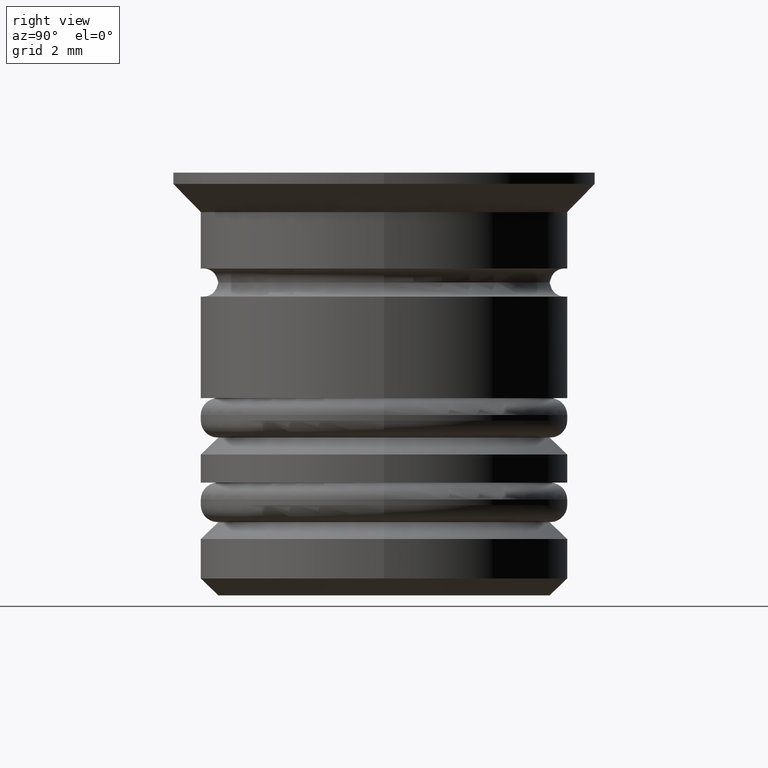
[diagram: clean part render]
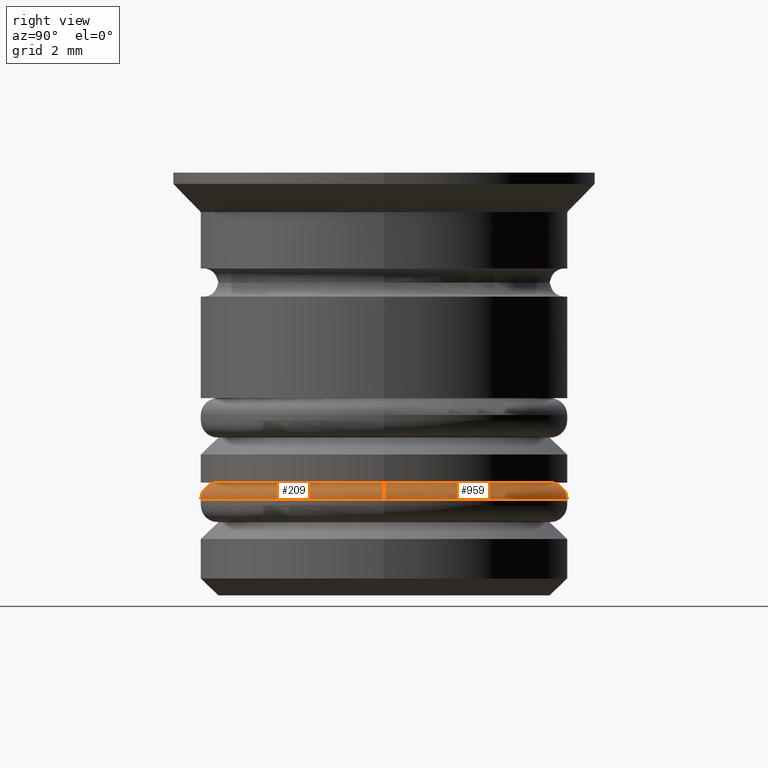
[diagram: same view with one multi-face feature highlighted, each face labeled with its STEP entity id]
A machine part, right view. The highlighted faces form ONE feature: a constant-radius fillet chain: 2 tangent blend faces with common blend radius 0.3 mm. The faces share edges in the B-rep.
Their STEP definitions:
[1] entity #959 (Torus):
#73 = CARTESIAN_POINT ( 'NONE',  ( 0.000000000000000000, 0.000000000000000000, -5.799999999999999822 ) ) ;
#83 = DIRECTION ( 'NONE',  ( -1.000000000000000000, 0.000000000000000000, 0.000000000000000000 ) ) ;
#97 = CARTESIAN_POINT ( 'NONE',  ( -3.250000000000000444, 3.980102097228898231E-16, -5.799999999999999822 ) ) ;
#189 = DIRECTION ( 'NONE',  ( -1.000000000000000000, 0.000000000000000000, 0.000000000000000000 ) ) ;
#244 = CARTESIAN_POINT ( 'NONE',  ( 3.250000000000000444, 0.000000000000000000, -5.799999999999999822 ) ) ;
#279 = VERTEX_POINT ( 'NONE', #97 ) ;
#332 = ORIENTED_EDGE ( 'NONE', *, *, #1760, .F. ) ;
#380 = EDGE_CURVE ( 'NONE', #279, #1247, #474, .T. ) ;
#437 = DIRECTION ( 'NONE',  ( -1.000000000000000000, -1.224646799147353207E-16, 0.000000000000000000 ) ) ;
#474 = CIRCLE ( 'NONE', #751, 3.250000000000000444 ) ;
#497 = CARTESIAN_POINT ( 'NONE',  ( 0.000000000000000000, 0.000000000000000000, -5.500000000000000000 ) ) ;
#508 = AXIS2_PLACEMENT_3D ( 'NONE', #497, #1657, #83 ) ;
#558 = EDGE_LOOP ( 'NONE', ( #332, #1706, #1800, #852 ) ) ;
#567 = CIRCLE ( 'NONE', #1602, 0.2999999999999999334 ) ;
#576 = CARTESIAN_POINT ( 'NONE',  ( -2.950000000000000178, 0.000000000000000000, -5.799999999999999822 ) ) ;
#587 = DIRECTION ( 'NONE',  ( -1.224646799147353207E-16, 1.000000000000000000, 0.000000000000000000 ) ) ;
#718 = AXIS2_PLACEMENT_3D ( 'NONE', #1071, #1343, #911 ) ;
#751 = AXIS2_PLACEMENT_3D ( 'NONE', #73, #1445, #189 ) ;
#777 = TOROIDAL_SURFACE ( 'NONE', #718, 2.950000000000000178, 0.2999999999999999889 ) ;
#823 = FACE_OUTER_BOUND ( 'NONE', #558, .T. ) ;
#830 = VERTEX_POINT ( 'NONE', #1228 ) ;
#837 = AXIS2_PLACEMENT_3D ( 'NONE', #1417, #587, #437 ) ;
#852 = ORIENTED_EDGE ( 'NONE', *, *, #860, .F. ) ;
#860 = EDGE_CURVE ( 'NONE', #830, #279, #567, .T. ) ;
#911 = DIRECTION ( 'NONE',  ( -1.000000000000000000, 0.000000000000000000, 0.000000000000000000 ) ) ;
#959 = ADVANCED_FACE ( 'NONE', ( #823 ), #777, .T. ) ;
#1056 = EDGE_CURVE ( 'NONE', #1153, #1247, #1289, .T. ) ;
#1071 = CARTESIAN_POINT ( 'NONE',  ( 0.000000000000000000, 0.000000000000000000, -5.799999999999999822 ) ) ;
#1072 = CIRCLE ( 'NONE', #508, 2.950000000000000178 ) ;
#1137 = DIRECTION ( 'NONE',  ( 0.000000000000000000, 0.000000000000000000, -1.000000000000000000 ) ) ;
#1153 = VERTEX_POINT ( 'NONE', #1172 ) ;
#1172 = CARTESIAN_POINT ( 'NONE',  ( 2.950000000000000178, 3.796405077356795411E-16, -5.500000000000000000 ) ) ;
#1228 = CARTESIAN_POINT ( 'NONE',  ( -2.950000000000000178, 0.000000000000000000, -5.500000000000000000 ) ) ;
#1247 = VERTEX_POINT ( 'NONE', #244 ) ;
#1289 = CIRCLE ( 'NONE', #837, 0.2999999999999999334 ) ;
#1343 = DIRECTION ( 'NONE',  ( 0.000000000000000000, 0.000000000000000000, -1.000000000000000000 ) ) ;
#1417 = CARTESIAN_POINT ( 'NONE',  ( 2.950000000000000178, 3.612708057484692097E-16, -5.799999999999999822 ) ) ;
#1445 = DIRECTION ( 'NONE',  ( 0.000000000000000000, 0.000000000000000000, -1.000000000000000000 ) ) ;
#1602 = AXIS2_PLACEMENT_3D ( 'NONE', #576, #1686, #1137 ) ;
#1657 = DIRECTION ( 'NONE',  ( -0.000000000000000000, -0.000000000000000000, 1.000000000000000000 ) ) ;
#1686 = DIRECTION ( 'NONE',  ( -0.000000000000000000, -1.000000000000000000, -0.000000000000000000 ) ) ;
#1706 = ORIENTED_EDGE ( 'NONE', *, *, #1056, .T. ) ;
#1760 = EDGE_CURVE ( 'NONE', #1153, #830, #1072, .T. ) ;
#1800 = ORIENTED_EDGE ( 'NONE', *, *, #380, .F. ) ;
[2] entity #209 (Torus):
#50 = CIRCLE ( 'NONE', #1087, 3.250000000000000444 ) ;
#97 = CARTESIAN_POINT ( 'NONE',  ( -3.250000000000000444, 3.980102097228898231E-16, -5.799999999999999822 ) ) ;
#105 = DIRECTION ( 'NONE',  ( 0.000000000000000000, 0.000000000000000000, -1.000000000000000000 ) ) ;
#146 = TOROIDAL_SURFACE ( 'NONE', #302, 2.950000000000000178, 0.2999999999999999889 ) ;
#184 = CIRCLE ( 'NONE', #1212, 2.950000000000000178 ) ;
#209 = ADVANCED_FACE ( 'NONE', ( #379 ), #146, .T. ) ;
#229 = ORIENTED_EDGE ( 'NONE', *, *, #1056, .F. ) ;
#233 = DIRECTION ( 'NONE',  ( -1.000000000000000000, 0.000000000000000000, 0.000000000000000000 ) ) ;
#244 = CARTESIAN_POINT ( 'NONE',  ( 3.250000000000000444, 0.000000000000000000, -5.799999999999999822 ) ) ;
#279 = VERTEX_POINT ( 'NONE', #97 ) ;
#286 = ORIENTED_EDGE ( 'NONE', *, *, #431, .F. ) ;
#289 = CARTESIAN_POINT ( 'NONE',  ( 0.000000000000000000, 0.000000000000000000, -5.799999999999999822 ) ) ;
#302 = AXIS2_PLACEMENT_3D ( 'NONE', #820, #105, #1494 ) ;
#379 = FACE_OUTER_BOUND ( 'NONE', #728, .T. ) ;
#431 = EDGE_CURVE ( 'NONE', #830, #1153, #184, .T. ) ;
#437 = DIRECTION ( 'NONE',  ( -1.000000000000000000, -1.224646799147353207E-16, 0.000000000000000000 ) ) ;
#545 = DIRECTION ( 'NONE',  ( 0.000000000000000000, 0.000000000000000000, -1.000000000000000000 ) ) ;
#567 = CIRCLE ( 'NONE', #1602, 0.2999999999999999334 ) ;
#576 = CARTESIAN_POINT ( 'NONE',  ( -2.950000000000000178, 0.000000000000000000, -5.799999999999999822 ) ) ;
#587 = DIRECTION ( 'NONE',  ( -1.224646799147353207E-16, 1.000000000000000000, 0.000000000000000000 ) ) ;
#708 = ORIENTED_EDGE ( 'NONE', *, *, #860, .T. ) ;
#728 = EDGE_LOOP ( 'NONE', ( #229, #286, #708, #975 ) ) ;
#820 = CARTESIAN_POINT ( 'NONE',  ( 0.000000000000000000, 0.000000000000000000, -5.799999999999999822 ) ) ;
#829 = EDGE_CURVE ( 'NONE', #1247, #279, #50, .T. ) ;
#830 = VERTEX_POINT ( 'NONE', #1228 ) ;
#837 = AXIS2_PLACEMENT_3D ( 'NONE', #1417, #587, #437 ) ;
#860 = EDGE_CURVE ( 'NONE', #830, #279, #567, .T. ) ;
#975 = ORIENTED_EDGE ( 'NONE', *, *, #829, .F. ) ;
#1056 = EDGE_CURVE ( 'NONE', #1153, #1247, #1289, .T. ) ;
#1087 = AXIS2_PLACEMENT_3D ( 'NONE', #289, #545, #1126 ) ;
#1126 = DIRECTION ( 'NONE',  ( -1.000000000000000000, 0.000000000000000000, 0.000000000000000000 ) ) ;
#1137 = DIRECTION ( 'NONE',  ( 0.000000000000000000, 0.000000000000000000, -1.000000000000000000 ) ) ;
#1153 = VERTEX_POINT ( 'NONE', #1172 ) ;
#1172 = CARTESIAN_POINT ( 'NONE',  ( 2.950000000000000178, 3.796405077356795411E-16, -5.500000000000000000 ) ) ;
#1208 = CARTESIAN_POINT ( 'NONE',  ( 0.000000000000000000, 0.000000000000000000, -5.500000000000000000 ) ) ;
#1212 = AXIS2_PLACEMENT_3D ( 'NONE', #1208, #1363, #233 ) ;
#1228 = CARTESIAN_POINT ( 'NONE',  ( -2.950000000000000178, 0.000000000000000000, -5.500000000000000000 ) ) ;
#1247 = VERTEX_POINT ( 'NONE', #244 ) ;
#1289 = CIRCLE ( 'NONE', #837, 0.2999999999999999334 ) ;
#1363 = DIRECTION ( 'NONE',  ( -0.000000000000000000, -0.000000000000000000, 1.000000000000000000 ) ) ;
#1417 = CARTESIAN_POINT ( 'NONE',  ( 2.950000000000000178, 3.612708057484692097E-16, -5.799999999999999822 ) ) ;
#1494 = DIRECTION ( 'NONE',  ( -1.000000000000000000, 0.000000000000000000, 0.000000000000000000 ) ) ;
#1602 = AXIS2_PLACEMENT_3D ( 'NONE', #576, #1686, #1137 ) ;
#1686 = DIRECTION ( 'NONE',  ( -0.000000000000000000, -1.000000000000000000, -0.000000000000000000 ) ) ;